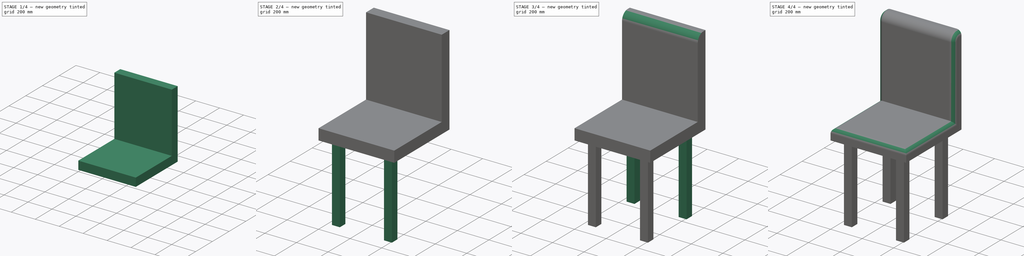
[diagram: build sequence overview — one tinted view per stage of 4, left to right]
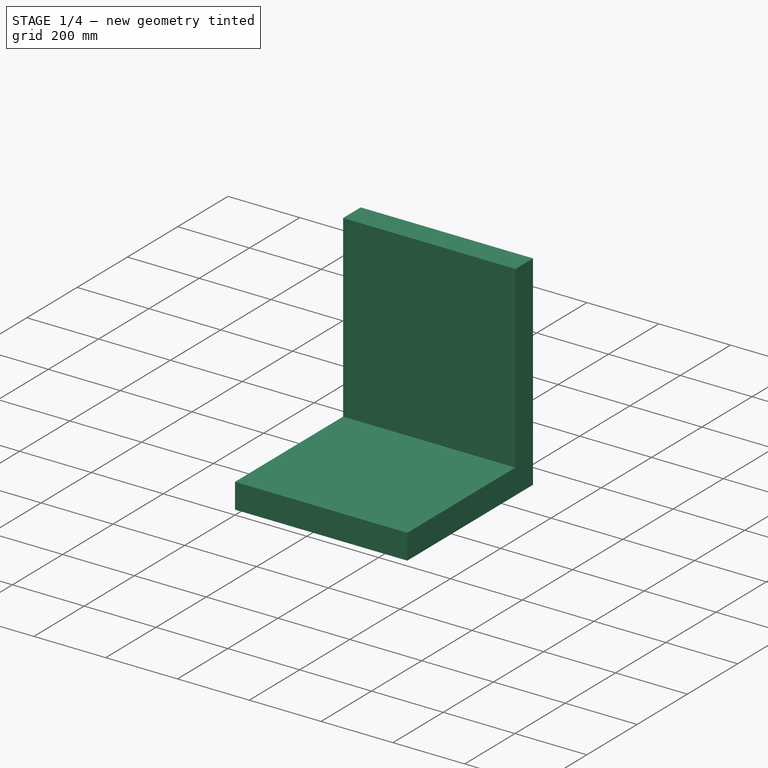
[diagram: stage 1 of 4 — iso view after this stage's code; geometry added in this stage tinted green]
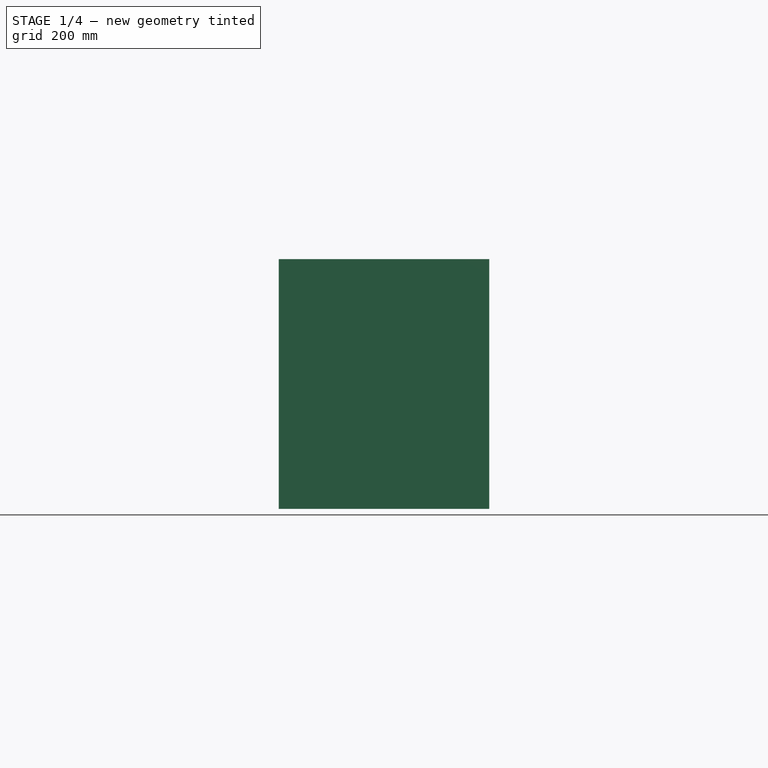
[diagram: stage 1 of 4 — front view after this stage's code; geometry added in this stage tinted green]
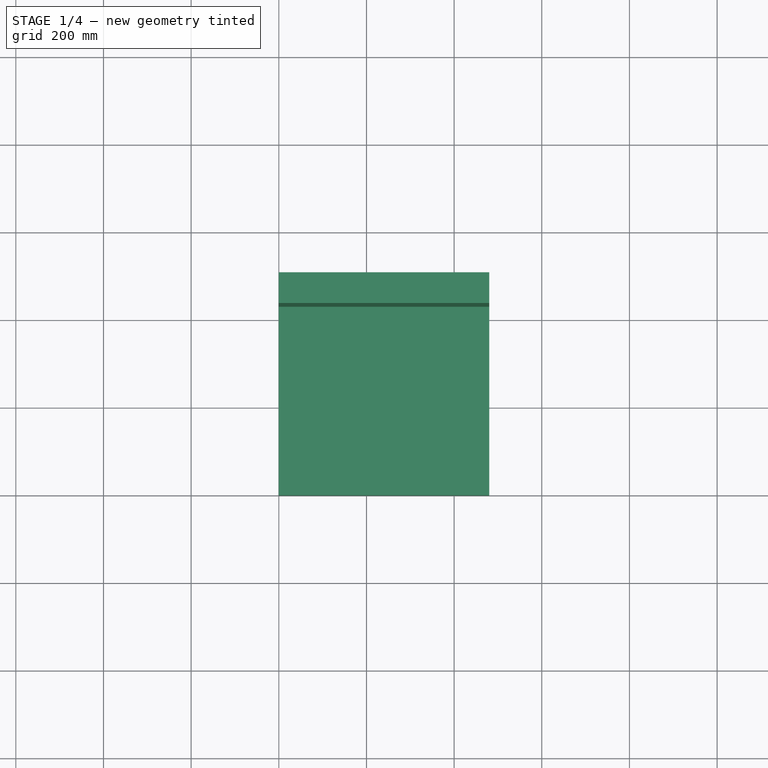
[diagram: stage 1 of 4 — top view after this stage's code; geometry added in this stage tinted green]
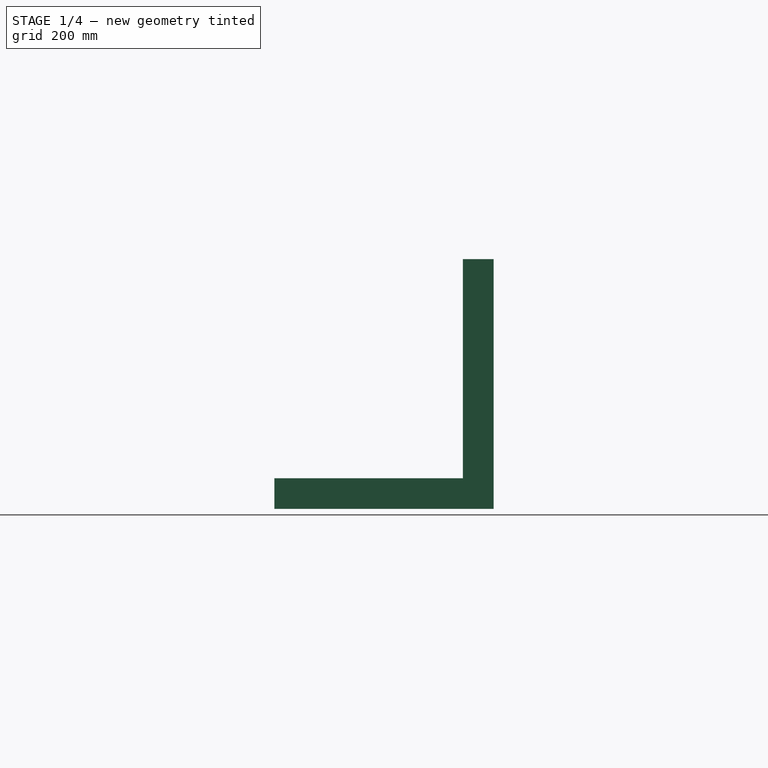
[diagram: stage 1 of 4 — right view after this stage's code; geometry added in this stage tinted green]
FCSTD DOCUMENT  (FreeCAD 0.18R16131 (Git))
Label: SimpleChair
License: All rights reserved
LicenseURL: http://en.wikipedia.org/wiki/All_rights_reserved
objects: Sketcher::SketchObject×6, PartDesign::Pad×6, PartDesign::Fillet×3, PartDesign::Body×1
note: 22 computed .brp shape members not serialized (recipe doc carries the construction recipe); baked Part::Feature solids carry a one-line shape summary decoded from their .brp

FEATURE [Sketcher::SketchObject] Sketch619
  MapMode = 5
  Support = -> [XY_Plane126]
  sketch-geometry (4):
    g0: LineSegment StartX=0 StartY=0 StartZ=0 EndX=480 EndY=0 EndZ=0
    g1: LineSegment StartX=480 StartY=0 StartZ=0 EndX=480 EndY=500 EndZ=0
    g2: LineSegment StartX=480 StartY=500 StartZ=0 EndX=0 EndY=500 EndZ=0
    g3: LineSegment StartX=0 StartY=500 StartZ=0 EndX=0 EndY=0 EndZ=0
  constraints (11):
    c: Coincident(g0,g1)
    c: Coincident(g1,g2)
    c: Coincident(g2,g3)
    c: Coincident(g3,g0)
    c: Horizontal(g0)
    c: Horizontal(g2)
    c: Vertical(g1)
    c: Vertical(g3)
    c: Coincident(g0,g-1)
    c: DistanceY(g1,g1) = 500
    c: DistanceX(g0,g0) = 480
FEATURE [PartDesign::Pad] Pad295
  Length = 70
  Length2 = 100
  Profile = -> Sketch619
  Type = 0
FEATURE [Sketcher::SketchObject] Sketch623
  MapMode = 5
  Placement = pos=(0,0,70) rot=(0,0,1;0rad)
  Support = -> [Pad295]
  sketch-geometry (4):
    g0: LineSegment StartX=0 StartY=500 StartZ=0 EndX=480 EndY=500 EndZ=0
    g1: LineSegment StartX=480 StartY=500 StartZ=0 EndX=480 EndY=430 EndZ=0
    g2: LineSegment StartX=480 StartY=430 StartZ=0 EndX=0 EndY=430 EndZ=0
    g3: LineSegment StartX=0 StartY=430 StartZ=0 EndX=0 EndY=500 EndZ=0
  constraints (12):
    c: Coincident(g0,g1)
    c: Coincident(g1,g2)
    c: Coincident(g2,g3)
    c: Coincident(g3,g0)
    c: Horizontal(g0)
    c: Horizontal(g2)
    c: Vertical(g1)
    c: Vertical(g3)
    c: DistanceX(g0,g0) = 480
    c: DistanceY(g3,g3) = 70
    c: DistanceX(g0) = 0
    c: DistanceY(g0) = 500
FEATURE [PartDesign::Pad] Pad298
  BaseFeature = -> Pad295
  Length = 500
  Length2 = 100
  Profile = -> Sketch623
  Type = 0
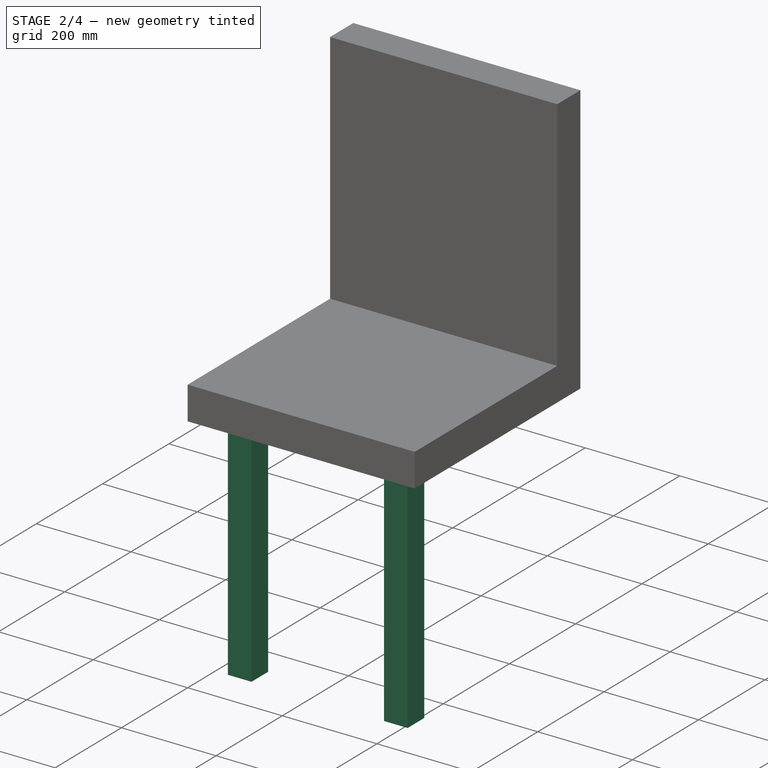
[diagram: stage 2 of 4 — iso view after this stage's code; geometry added in this stage tinted green]
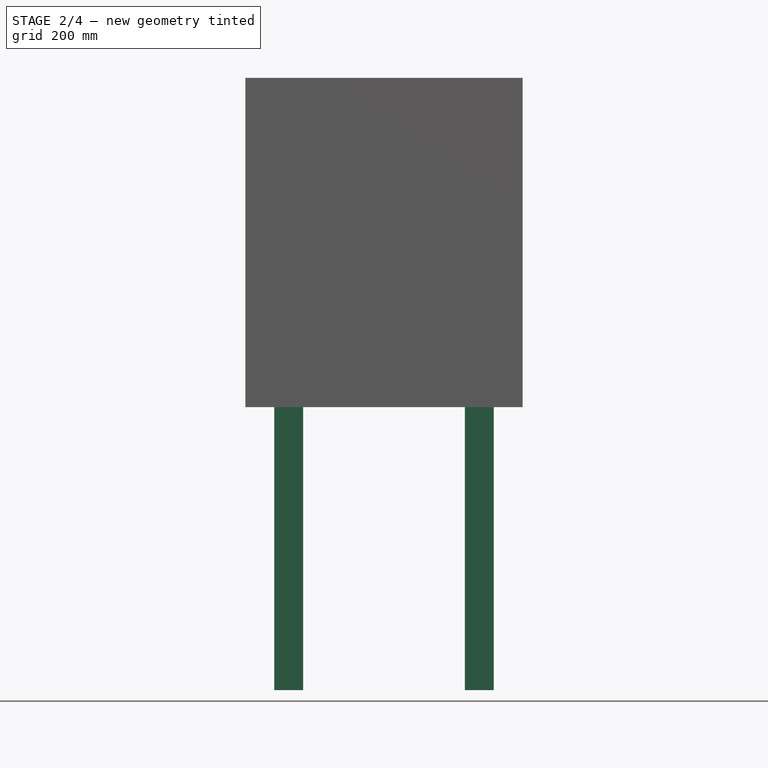
[diagram: stage 2 of 4 — front view after this stage's code; geometry added in this stage tinted green]
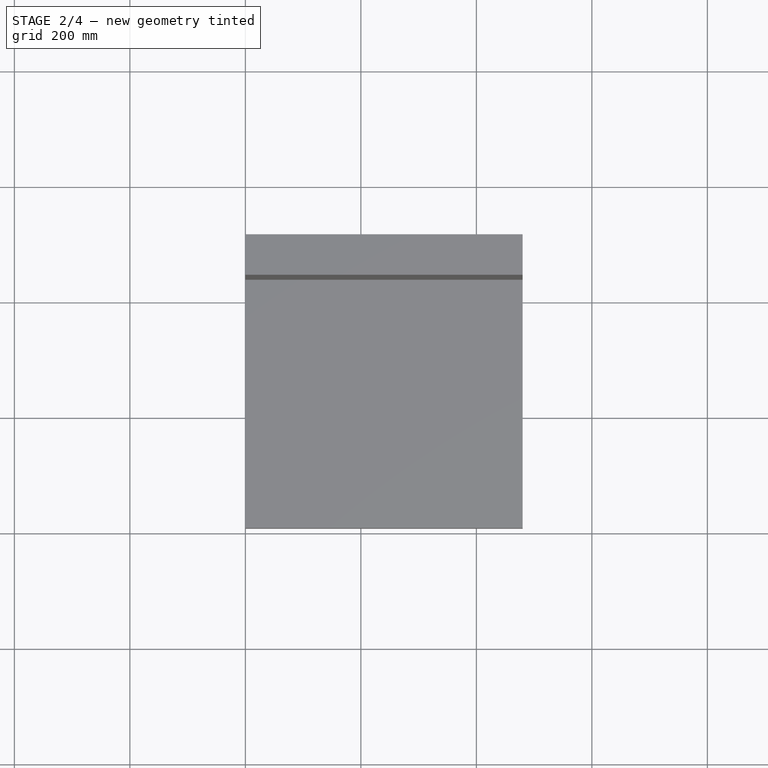
[diagram: stage 2 of 4 — top view after this stage's code; geometry added in this stage tinted green]
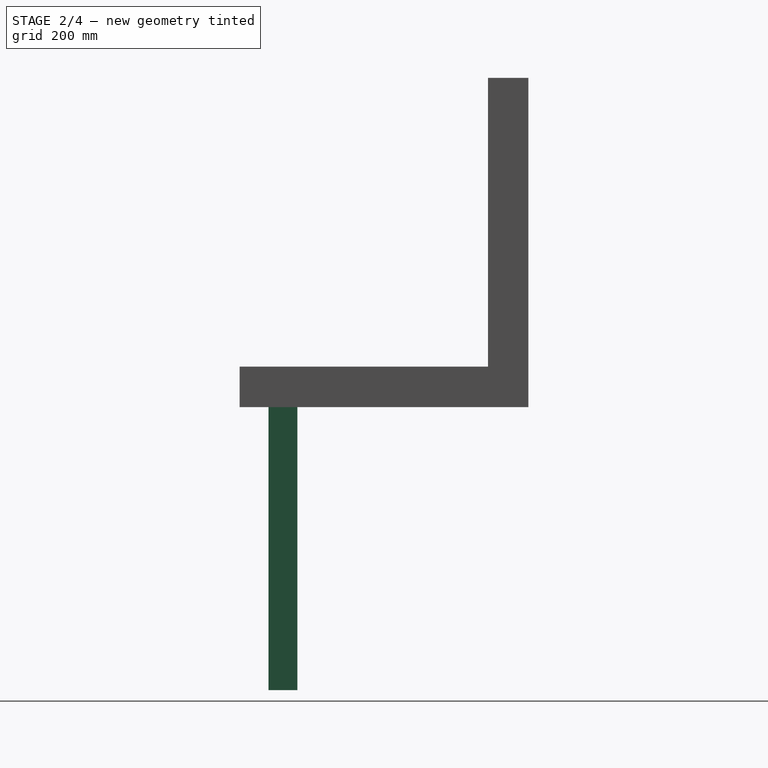
[diagram: stage 2 of 4 — right view after this stage's code; geometry added in this stage tinted green]
FEATURE [Sketcher::SketchObject] Sketch620
  MapMode = 5
  Placement = pos=(0,0,0) rot=(1,0,0;3.14159rad)
  Support = -> [Pad298]
  sketch-geometry (4):
    g0: LineSegment StartX=50 StartY=-50 StartZ=0 EndX=100 EndY=-50 EndZ=0
    g1: LineSegment StartX=100 StartY=-50 StartZ=0 EndX=100 EndY=-100 EndZ=0
    g2: LineSegment StartX=100 StartY=-100 StartZ=0 EndX=50 EndY=-100 EndZ=0
    g3: LineSegment StartX=50 StartY=-100 StartZ=0 EndX=50 EndY=-50 EndZ=0
  constraints (12):
    c: Coincident(g0,g1)
    c: Coincident(g1,g2)
    c: Coincident(g2,g3)
    c: Coincident(g3,g0)
    c: Horizontal(g0)
    c: Horizontal(g2)
    c: Vertical(g1)
    c: Vertical(g3)
    c: Equal(g2,g3)
    c: DistanceX(g2,g2) = 50
    c: DistanceY(g0) = -50
    c: DistanceX(g0) = 50
FEATURE [PartDesign::Pad] Pad294
  BaseFeature = -> Pad298
  Length = 490
  Length2 = 100
  Profile = -> Sketch620
  Type = 0
FEATURE [Sketcher::SketchObject] Sketch622
  MapMode = 5
  Placement = pos=(0,0,0) rot=(1,0,0;3.14159rad)
  Support = -> [Pad294]
  sketch-geometry (4):
    g0: LineSegment StartX=380 StartY=-50 StartZ=0 EndX=430 EndY=-50 EndZ=0
    g1: LineSegment StartX=430 StartY=-50 StartZ=0 EndX=430 EndY=-100 EndZ=0
    g2: LineSegment StartX=430 StartY=-100 StartZ=0 EndX=380 EndY=-100 EndZ=0
    g3: LineSegment StartX=380 StartY=-100 StartZ=0 EndX=380 EndY=-50 EndZ=0
  constraints (12):
    c: Coincident(g0,g1)
    c: Coincident(g1,g2)
    c: Coincident(g2,g3)
    c: Coincident(g3,g0)
    c: Horizontal(g0)
    c: Horizontal(g2)
    c: Vertical(g1)
    c: Vertical(g3)
    c: Equal(g2,g3)
    c: DistanceX(g2,g2) = 50
    c: DistanceY(g0) = -50
    c: DistanceX(g0) = 430
FEATURE [PartDesign::Pad] Pad293
  BaseFeature = -> Pad294
  Length = 490
  Length2 = 100
  Profile = -> Sketch622
  Type = 0
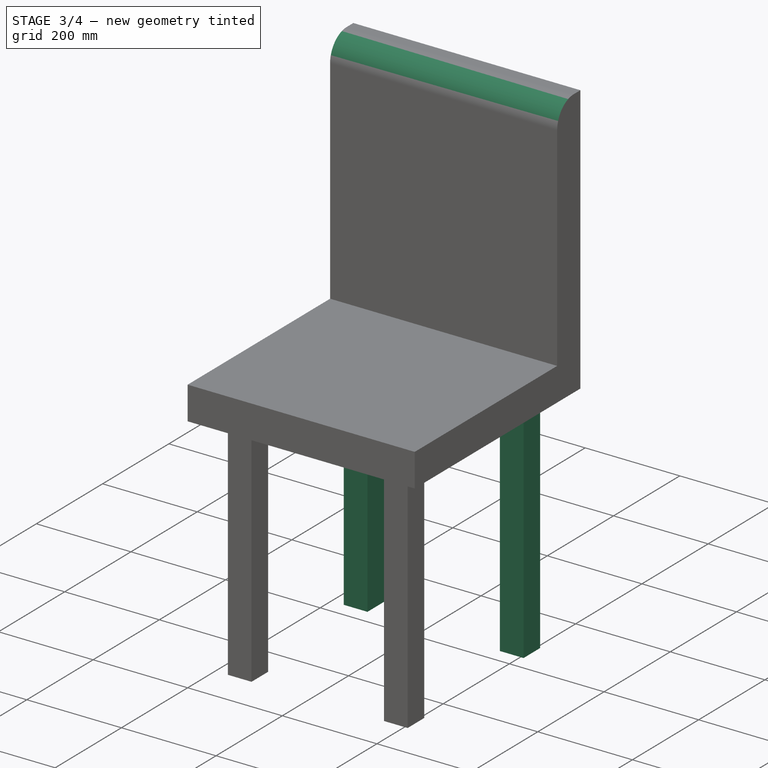
[diagram: stage 3 of 4 — iso view after this stage's code; geometry added in this stage tinted green]
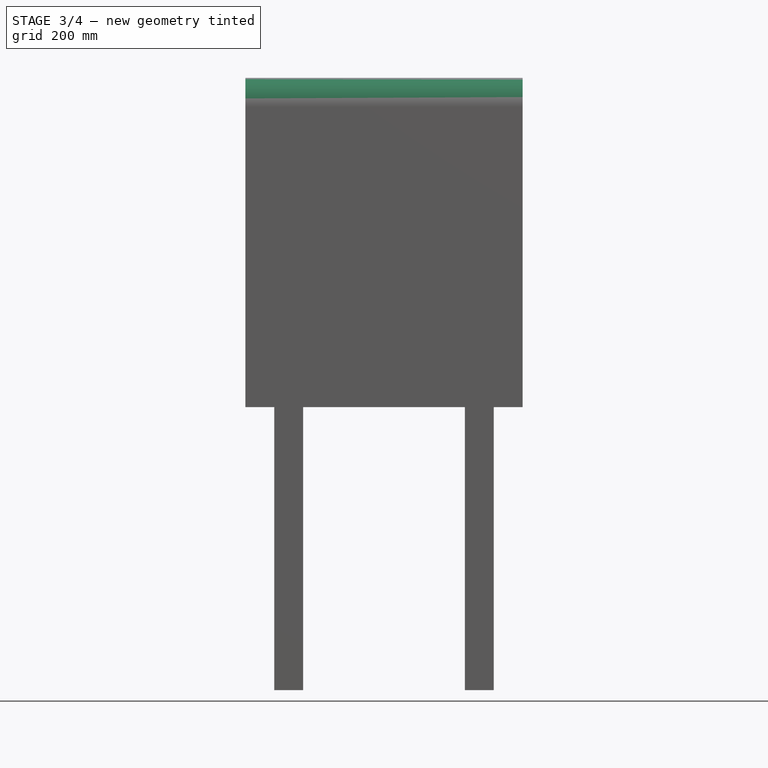
[diagram: stage 3 of 4 — front view after this stage's code; geometry added in this stage tinted green]
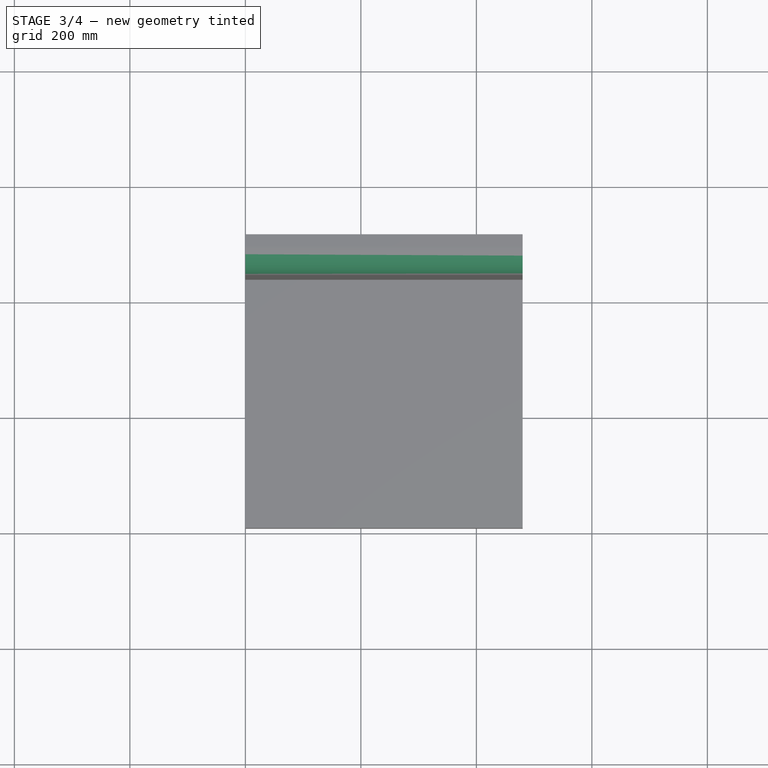
[diagram: stage 3 of 4 — top view after this stage's code; geometry added in this stage tinted green]
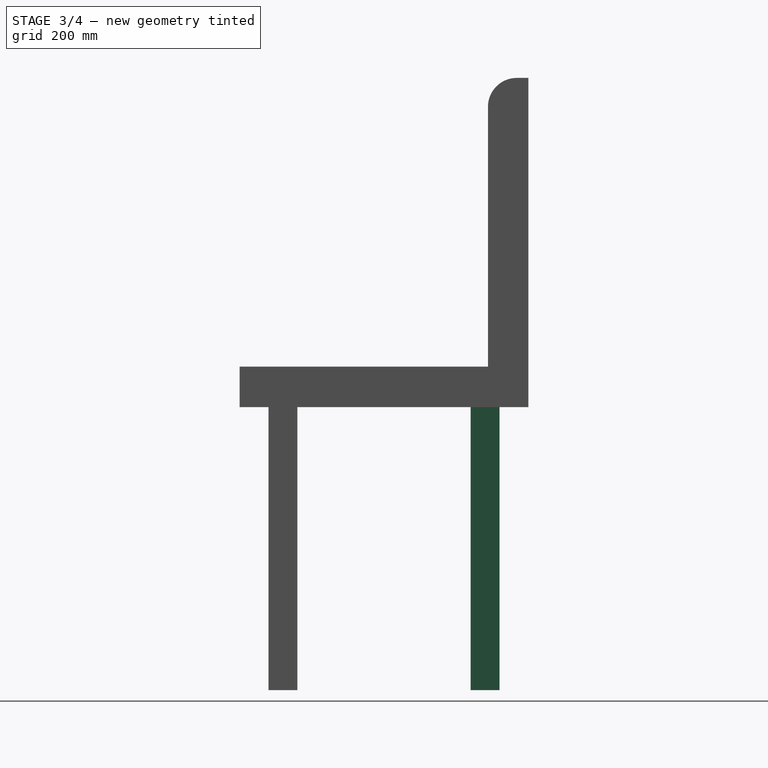
[diagram: stage 3 of 4 — right view after this stage's code; geometry added in this stage tinted green]
FEATURE [Sketcher::SketchObject] Sketch621
  MapMode = 5
  Placement = pos=(0,0,0) rot=(1,0,0;3.14159rad)
  Support = -> [Pad293]
  sketch-geometry (4):
    g0: LineSegment StartX=50 StartY=-400 StartZ=0 EndX=100 EndY=-400 EndZ=0
    g1: LineSegment StartX=100 StartY=-400 StartZ=0 EndX=100 EndY=-450 EndZ=0
    g2: LineSegment StartX=100 StartY=-450 StartZ=0 EndX=50 EndY=-450 EndZ=0
    g3: LineSegment StartX=50 StartY=-450 StartZ=0 EndX=50 EndY=-400 EndZ=0
  constraints (12):
    c: Coincident(g0,g1)
    c: Coincident(g1,g2)
    c: Coincident(g2,g3)
    c: Coincident(g3,g0)
    c: Horizontal(g0)
    c: Horizontal(g2)
    c: Vertical(g1)
    c: Vertical(g3)
    c: Equal(g2,g3)
    c: DistanceX(g2,g2) = 50
    c: DistanceX(g2) = 50
    c: DistanceY(g2) = -450
FEATURE [PartDesign::Pad] Pad296
  BaseFeature = -> Pad293
  Length = 490
  Length2 = 100
  Profile = -> Sketch621
  Type = 0
FEATURE [Sketcher::SketchObject] Sketch624
  MapMode = 5
  Placement = pos=(0,0,0) rot=(1,0,0;3.14159rad)
  Support = -> [Pad296]
  sketch-geometry (4):
    g0: LineSegment StartX=380 StartY=-400 StartZ=0 EndX=430 EndY=-400 EndZ=0
    g1: LineSegment StartX=430 StartY=-400 StartZ=0 EndX=430 EndY=-450 EndZ=0
    g2: LineSegment StartX=430 StartY=-450 StartZ=0 EndX=380 EndY=-450 EndZ=0
    g3: LineSegment StartX=380 StartY=-450 StartZ=0 EndX=380 EndY=-400 EndZ=0
  constraints (12):
    c: Coincident(g0,g1)
    c: Coincident(g1,g2)
    c: Coincident(g2,g3)
    c: Coincident(g3,g0)
    c: Horizontal(g0)
    c: Horizontal(g2)
    c: Vertical(g1)
    c: Vertical(g3)
    c: Equal(g2,g3)
    c: DistanceX(g2,g2) = 50
    c: DistanceX(g1) = 430
    c: DistanceY(g1) = -450
FEATURE [PartDesign::Pad] Pad297
  BaseFeature = -> Pad296
  Length = 490
  Length2 = 100
  Profile = -> Sketch624
  Type = 0
FEATURE [PartDesign::Fillet] Fillet207
  Base = -> Pad297 [Edge70]
  BaseFeature = -> Pad297
  Radius = 50
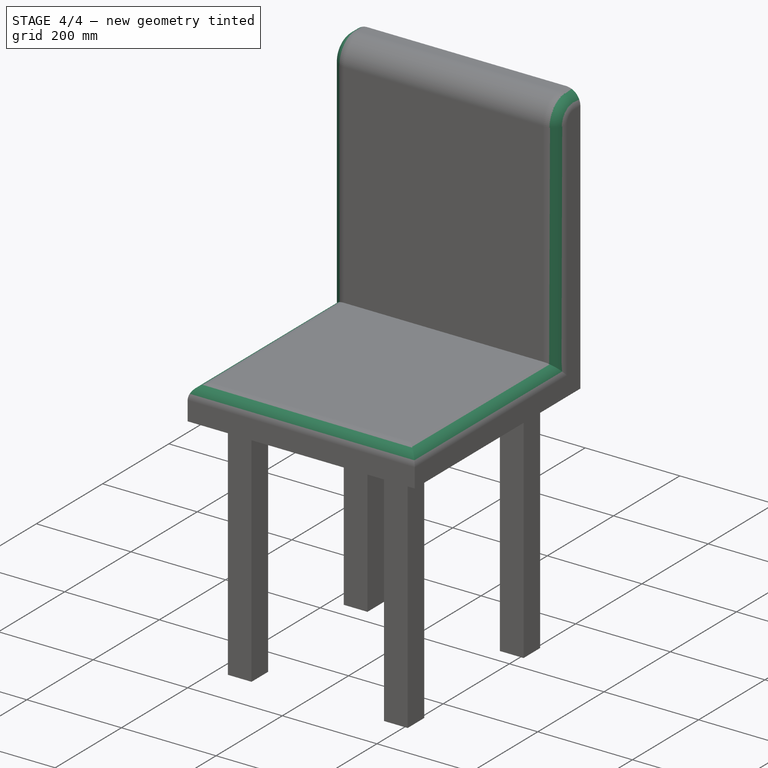
[diagram: stage 4 of 4 — iso view after this stage's code; geometry added in this stage tinted green]
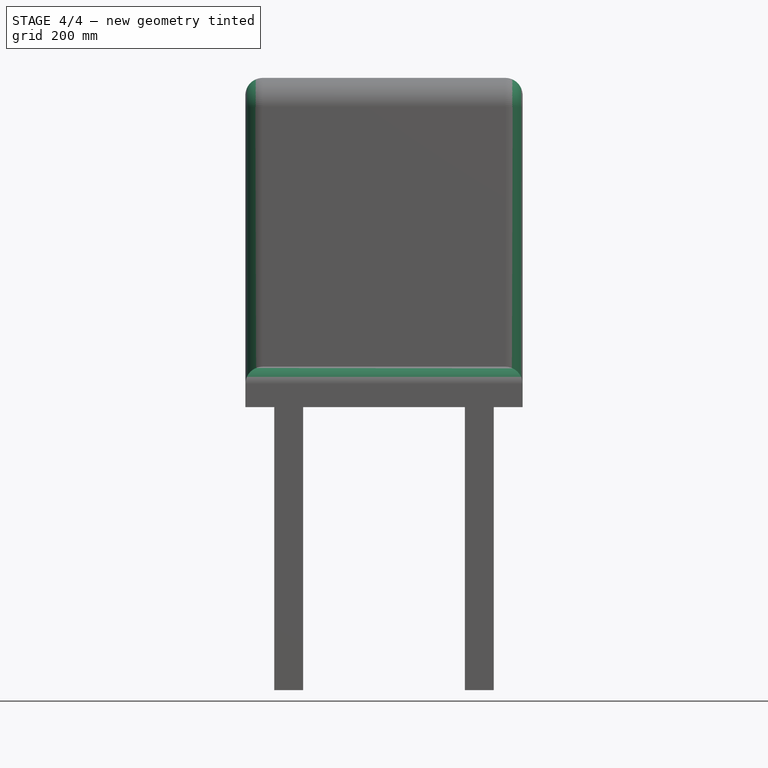
[diagram: stage 4 of 4 — front view after this stage's code; geometry added in this stage tinted green]
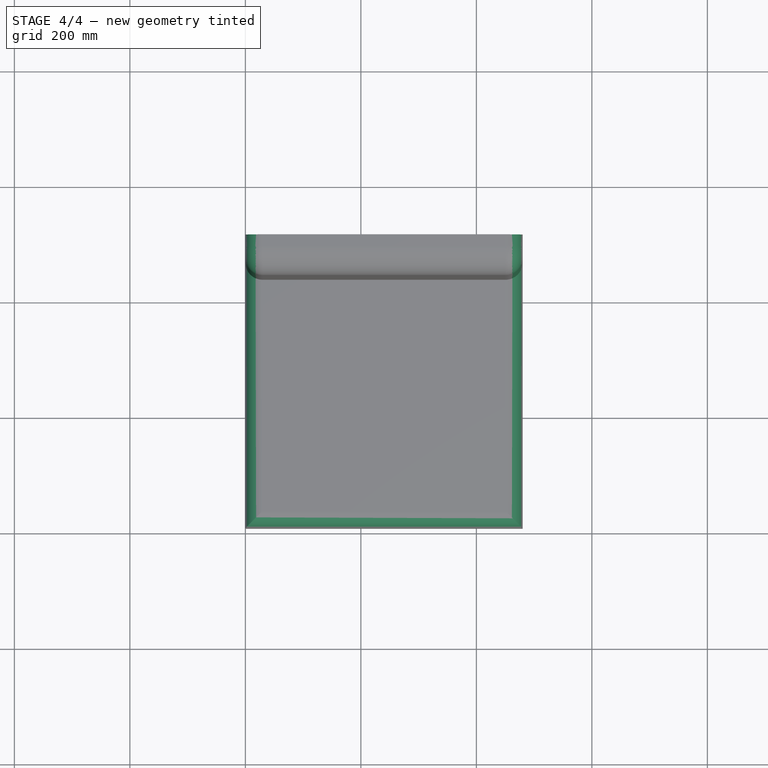
[diagram: stage 4 of 4 — top view after this stage's code; geometry added in this stage tinted green]
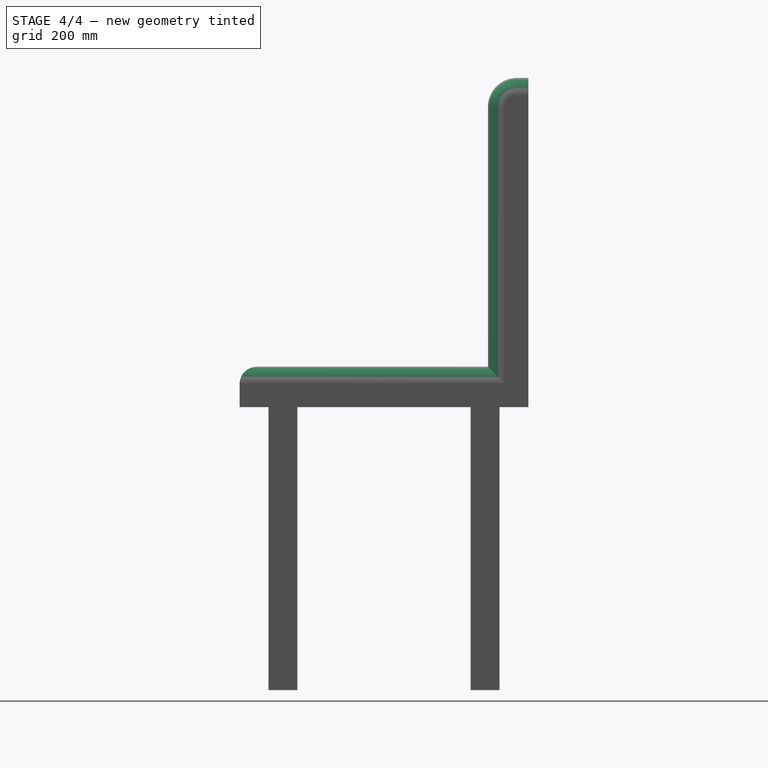
[diagram: stage 4 of 4 — right view after this stage's code; geometry added in this stage tinted green]
FEATURE [PartDesign::Fillet] Fillet208
  Base = -> Fillet207 [Edge21,Edge20,Edge14]
  BaseFeature = -> Fillet207
  Radius = 30
FEATURE [PartDesign::Fillet] Fillet209
  Base = -> Fillet208 [Edge4,Edge26,Edge6,Edge27]
  BaseFeature = -> Fillet208
  Radius = 30
FEATURE [PartDesign::Body] Body125  label="SimpleChair"
  Group = -> [Sketch619,Pad295,Sketch623,Pad298,Sketch620,Pad294,Sketch622,Pad293,Sketch621,Pad296,Sketch624,Pad297,Fillet207,Fillet208,Fillet209]
  Origin = -> Origin122
  Placement = pos=(4200,9000,810) rot=(0,0,1;3.14159rad)
  Tip = -> Fillet209
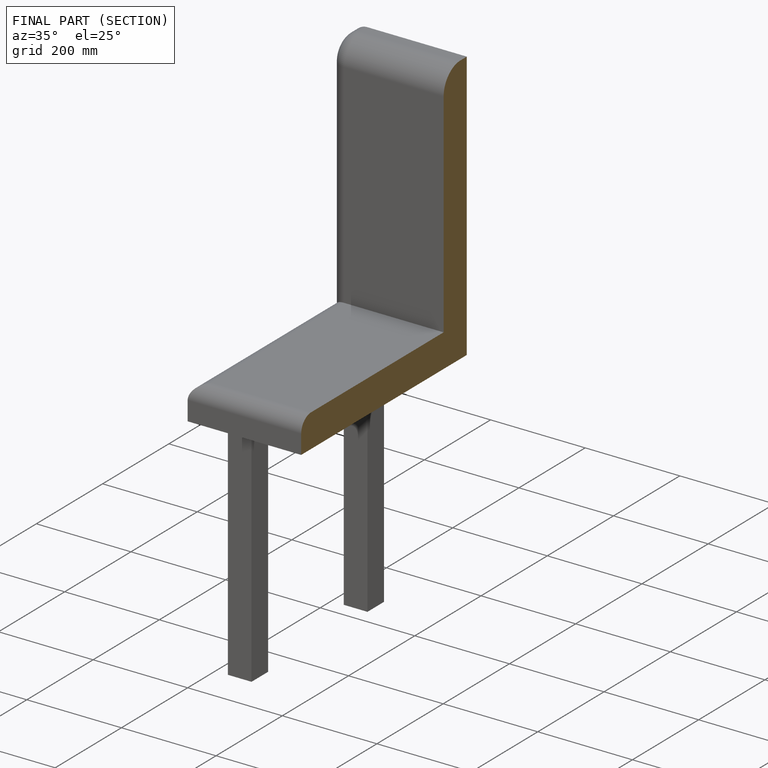
[diagram: finished part — half-section view (interior)]
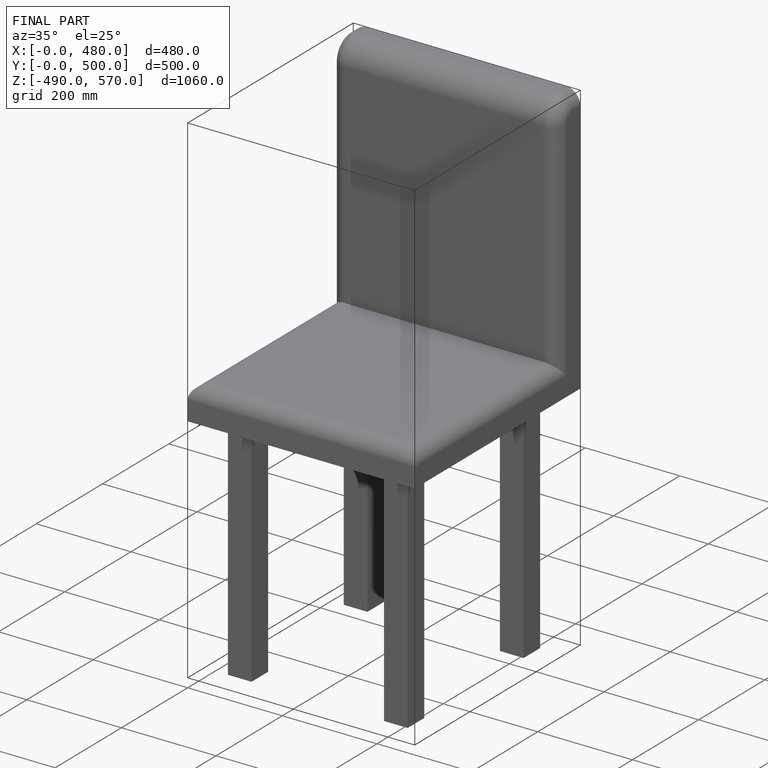
[diagram: finished part — iso view with bounding-box wireframe]
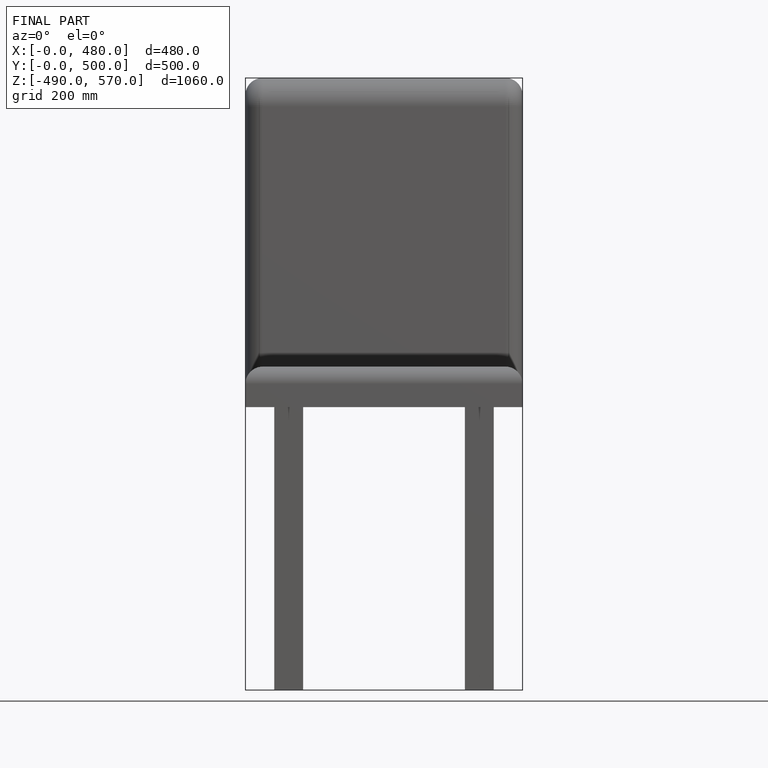
[diagram: finished part — front view with bounding-box wireframe]
